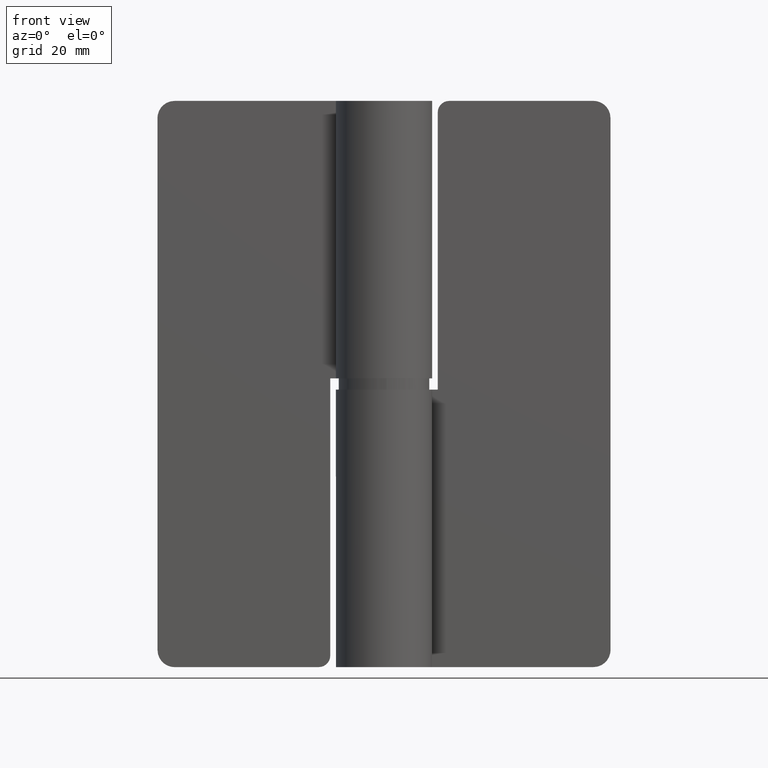
[diagram: clean part render]
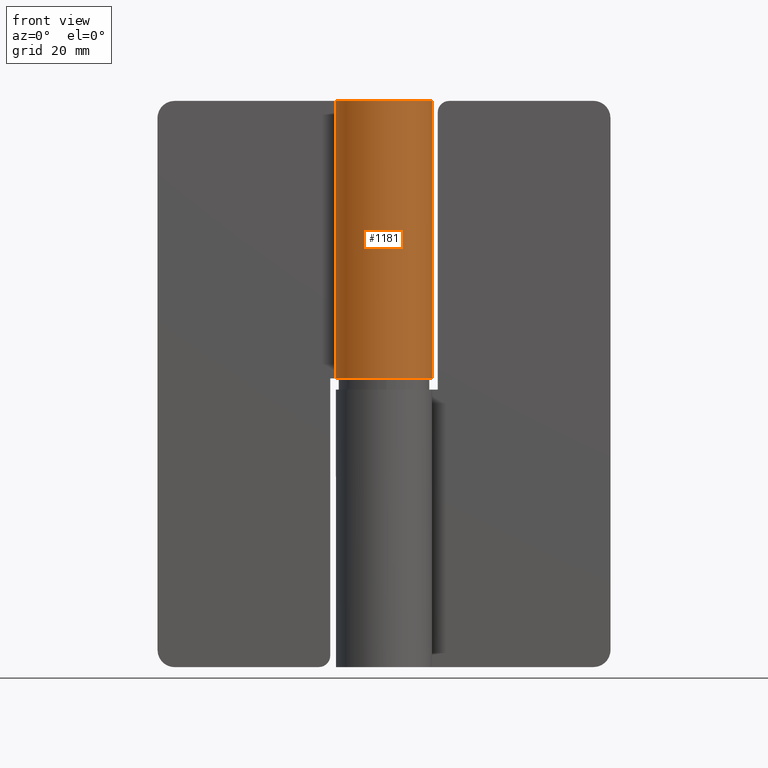
[diagram: same view with one face highlighted and labeled with its STEP entity id]
A machine part, front view. The second image highlights one B-rep face of the part: STEP entity #1181.
In plain terms, the highlighted face is a freeform B-spline surface patch.
Its self-contained STEP definition (entity closure, byte-faithful):
#999=CARTESIAN_POINT('',(-3.469447E-015,8.500000000000000,51.0));
#1000=VERTEX_POINT('',#999);
#1001=CARTESIAN_POINT('',(-7.526453348025220,3.950000000000000,51.0));
#1002=VERTEX_POINT('',#1001);
#1003=CARTESIAN_POINT('',(0.0,8.500000000000000,51.0));
#1004=CARTESIAN_POINT('',(6.454516851895553,8.500000000000000,51.000000000000007));
#1005=CARTESIAN_POINT('',(8.187790666559611,2.282560842693867,51.0));
#1006=CARTESIAN_POINT('',(9.921064481223668,-3.934878314612273,51.000000000000007));
#1007=CARTESIAN_POINT('',(4.397442438509001,-7.274097882211925,51.0));
#1008=CARTESIAN_POINT('',(-1.126179604205665,-10.613317449811577,51.000000000000007));
#1009=CARTESIAN_POINT('',(-5.826042450526469,-6.189283429013697,51.0));
#1010=CARTESIAN_POINT('',(-10.525905296847268,-1.765249408215823,51.000000000000007));
#1011=CARTESIAN_POINT('',(-7.526453348025219,3.949999999999998,51.0));
#1019=(BOUNDED_CURVE()B_SPLINE_CURVE(2,(#1003,#1004,#1005,#1006,#1007,#1008,#1009,#1010,#1011),.UNSPECIFIED.,.F.,.U.)B_SPLINE_CURVE_WITH_KNOTS((3,2,2,2,3),(0.0,0.250000000000000,0.500000000000000,0.750000000000000,1.0),.UNSPECIFIED.)CURVE()GEOMETRIC_REPRESENTATION_ITEM()RATIONAL_B_SPLINE_CURVE((1.0,0.796409621278112,1.0,0.796409621278112,1.0,0.796409621278112,1.0,0.796409621278112,1.0))REPRESENTATION_ITEM(''));
#1020=EDGE_CURVE('',#1000,#1002,#1019,.T.);
#1123=CARTESIAN_POINT('',(-0.074175551736174,8.499676346045455,49.774999999999999));
#1124=CARTESIAN_POINT('',(-0.074175551736174,8.499676346045455,101.255624999999990));
#1125=CARTESIAN_POINT('',(10.115392873258319,8.588599362535266,49.775000000000006));
#1126=CARTESIAN_POINT('',(10.115392873258319,8.588599362535266,101.255625000000010));
#1127=CARTESIAN_POINT('',(8.375124016759077,-1.451653437947658,49.774999999999999));
#1128=CARTESIAN_POINT('',(8.375124016759077,-1.451653437947658,101.255624999999990));
#1129=CARTESIAN_POINT('',(6.634855160259837,-11.491906238430586,49.775000000000006));
#1130=CARTESIAN_POINT('',(6.634855160259837,-11.491906238430586,101.255625000000010));
#1131=CARTESIAN_POINT('',(-2.930393253625849,-7.978896877332359,49.774999999999999));
#1132=CARTESIAN_POINT('',(-2.930393253625849,-7.978896877332359,101.255624999999990));
#1133=CARTESIAN_POINT('',(-12.495641667511535,-4.465887516234135,49.775000000000006));
#1134=CARTESIAN_POINT('',(-12.495641667511535,-4.465887516234135,101.255625000000010));
#1135=CARTESIAN_POINT('',(-7.323847863752969,4.314076085165981,49.774999999999999));
#1136=CARTESIAN_POINT('',(-7.323847863752969,4.314076085165981,101.255624999999990));
#1144=(BOUNDED_SURFACE()B_SPLINE_SURFACE(1,2,((#1123,#1125,#1127,#1129,#1131,#1133,#1135),(#1124,#1126,#1128,#1130,#1132,#1134,#1136)),.UNSPECIFIED.,.F.,.F.,.U.)B_SPLINE_SURFACE_WITH_KNOTS((2,2),(3,2,2,3),(0.0,51.480625000000018),(0.0,15.914705038680530,31.829410077361061,47.744115116041598),.UNSPECIFIED.)GEOMETRIC_REPRESENTATION_ITEM()RATIONAL_B_SPLINE_SURFACE(((1.0,0.640556560368615,1.0,0.640556560368615,1.0,0.640556560368615,1.0),(1.0,0.640556560368615,1.0,0.640556560368615,1.0,0.640556560368615,1.0)))REPRESENTATION_ITEM('')SURFACE());
#1145=ORIENTED_EDGE('',*,*,#1020,.F.);
#1146=CARTESIAN_POINT('',(-3.254301E-015,8.500000000000000,100.0));
#1147=VERTEX_POINT('',#1146);
#1148=CARTESIAN_POINT('',(-3.469447E-015,8.500000000000000,51.0));
#1149=CARTESIAN_POINT('',(-3.254301E-015,8.500000000000000,100.0));
#1150=QUASI_UNIFORM_CURVE('',1,(#1148,#1149),.UNSPECIFIED.,.F.,.U.);
#1151=EDGE_CURVE('',#1000,#1147,#1150,.T.);
#1152=ORIENTED_EDGE('',*,*,#1151,.T.);
#1153=CARTESIAN_POINT('',(-7.526453348025220,3.950000000000000,100.0));
#1154=VERTEX_POINT('',#1153);
#1155=CARTESIAN_POINT('',(0.0,8.500000000000000,100.0));
#1156=CARTESIAN_POINT('',(6.454516851895557,8.500000000000002,100.0));
#1157=CARTESIAN_POINT('',(8.187790666559613,2.282560842693864,100.0));
#1158=CARTESIAN_POINT('',(9.921064481223665,-3.934878314612266,100.0));
#1159=CARTESIAN_POINT('',(4.397442438509009,-7.274097882211921,100.0));
#1160=CARTESIAN_POINT('',(-1.126179604205650,-10.613317449811575,100.0));
#1161=CARTESIAN_POINT('',(-5.826042450526457,-6.189283429013709,100.0));
#1162=CARTESIAN_POINT('',(-10.525905296847270,-1.765249408215838,100.0));
#1163=CARTESIAN_POINT('',(-7.526453348025222,3.949999999999990,100.0));
#1171=(BOUNDED_CURVE()B_SPLINE_CURVE(2,(#1155,#1156,#1157,#1158,#1159,#1160,#1161,#1162,#1163),.UNSPECIFIED.,.F.,.U.)B_SPLINE_CURVE_WITH_KNOTS((3,2,2,2,3),(0.0,0.250000000000000,0.500000000000000,0.750000000000000,1.0),.UNSPECIFIED.)CURVE()GEOMETRIC_REPRESENTATION_ITEM()RATIONAL_B_SPLINE_CURVE((1.0,0.796409621278112,1.0,0.796409621278112,1.0,0.796409621278112,1.0,0.796409621278112,1.0))REPRESENTATION_ITEM(''));
#1172=EDGE_CURVE('',#1147,#1154,#1171,.T.);
#1173=ORIENTED_EDGE('',*,*,#1172,.T.);
#1174=CARTESIAN_POINT('',(-7.526453348025220,3.950000000000000,51.0));
#1175=CARTESIAN_POINT('',(-7.526453348025220,3.950000000000000,100.0));
#1176=QUASI_UNIFORM_CURVE('',1,(#1174,#1175),.UNSPECIFIED.,.F.,.U.);
#1177=EDGE_CURVE('',#1002,#1154,#1176,.T.);
#1178=ORIENTED_EDGE('',*,*,#1177,.F.);
#1179=EDGE_LOOP('',(#1145,#1152,#1173,#1178));
#1180=FACE_OUTER_BOUND('',#1179,.T.);
#1181=ADVANCED_FACE('',(#1180),#1144,.T.);